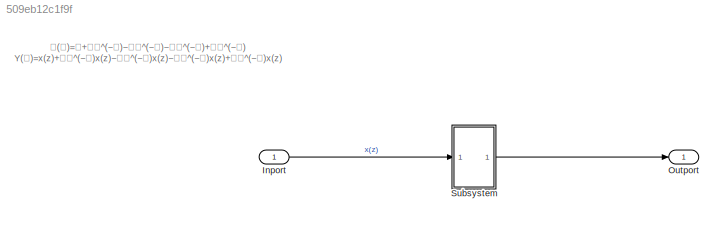
MODEL slx_509eb12c1f9f
KIND model
CONFIG AbsTol = auto
CONFIG EnableMultiTasking = off
CONFIG FixedStep = auto
CONFIG MaxStep = auto
CONFIG MinStep = auto
CONFIG RelTol = 1e-3
CONFIG SampleTimeConstraint = Unconstrained
CONFIG SolverName = VariableStepAuto
CONFIG StartTime = 0.0
CONFIG StopTime = 10.0
BLOCK [Inport] Inport
BLOCK [Outport] Outport
BLOCK [ModelReference] Subsystem
  ModelNameDialog = Subsystem0
  ModelReferenceVersion = 1.9
  Ports = [1, 1]
ANNOTATION (root): 𝐇(𝐳)=𝟏+𝟐𝐳^(−𝟏)−𝟑𝐳^(−𝟐)−𝟒𝐳^(−𝟑)+𝟓𝐳^(−𝟒) Y(𝐳)=x(z)+𝟐𝐳^(−𝟏)x(z)−𝟑𝐳^(−𝟐)x(z)−𝟒𝐳^(−𝟑)x(z)+𝟓𝐳^(−𝟒)x(z)
LINE Inport:1 -> Subsystem:1
LINE Subsystem:1 -> Outport:1
